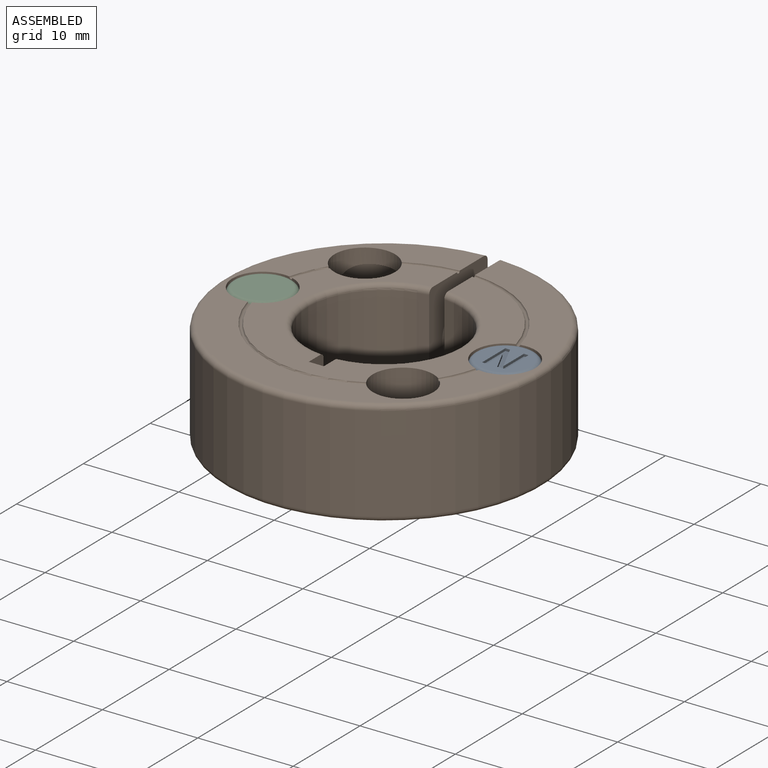
[diagram: assembled view]
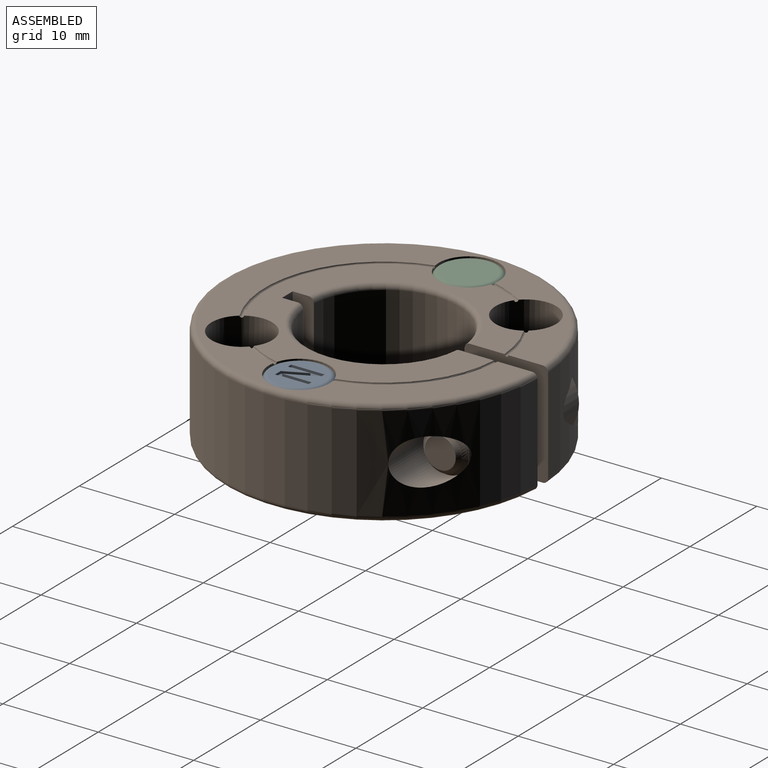
[diagram: assembled view, second angle]
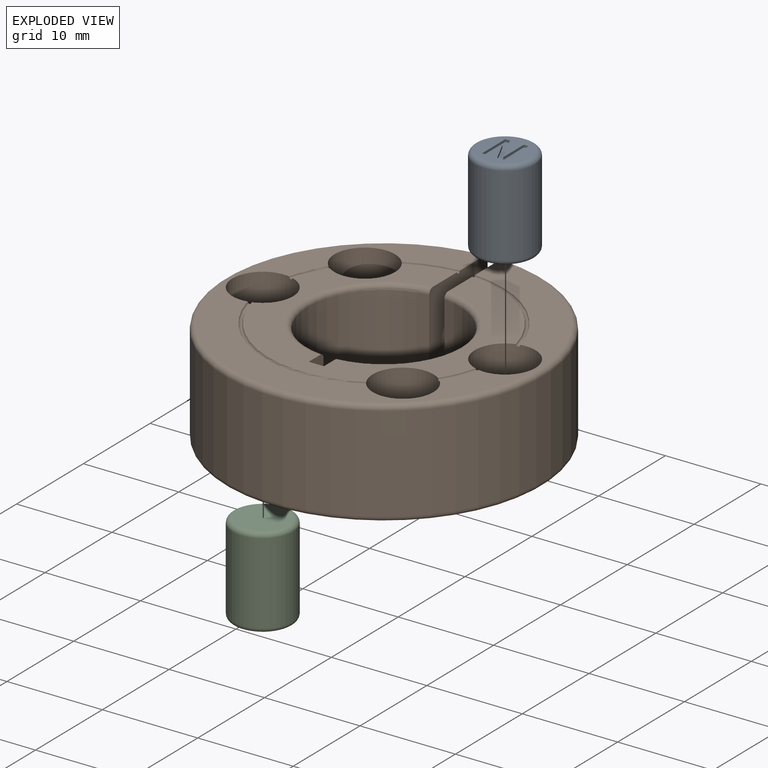
[diagram: exploded view]
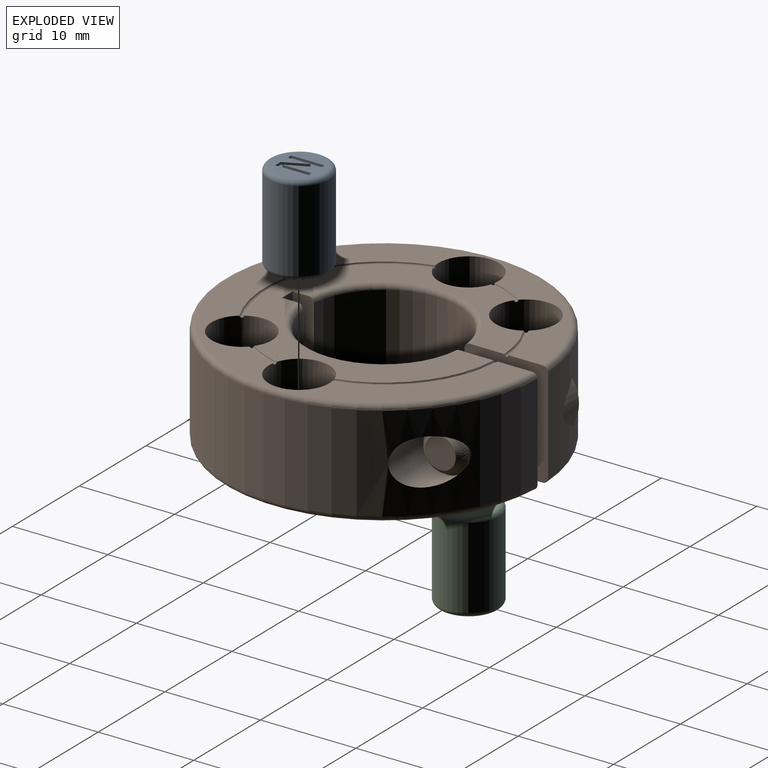
[diagram: exploded view, second angle]
ASSEMBLY  parts=3 mates=2
PART A: 16 faces, bbox 6.9x6.9x9.5 mm
  f0: plane 5.33x5.33mm, normal (0,0,1), area 17.4mm2, adj f3,f4,f5,f6,f7,f8,f9,f10
  f1: cylinder r=3.17mm len=8.51mm, axis (0,0,-1), area 169.7mm2, adj f14,f15
  f2: plane 5.33x5.33mm, normal (0,0,-1), area 22.3mm2, adj f14
  f3: plane 3.48x0.25mm, normal (1,0,0), area 0.9mm2, adj f0,f4,f12,f13
  f4: plane 0.49x0.25mm, normal (0,1,0), area 0.1mm2, adj f0,f3,f5,f13
  f5: plane 2.33x0.25mm, normal (-1,0,0), area 0.6mm2, adj f0,f4,f6,f13
  f6: plane 2.33x1.1mm, normal (0.9,0.43,0), area 0.7mm2, adj f0,f5,f7,f13
  f7: plane 0.85x0.25mm, normal (0,1,0), area 0.2mm2, adj f0,f6,f8,f13
  f8: plane 3.48x0.25mm, normal (-1,0,0), area 0.9mm2, adj f0,f7,f9,f13
  f9: plane 0.49x0.25mm, normal (0,-1,0), area 0.1mm2, adj f0,f8,f10,f13
  f10: plane 3.08x0.25mm, normal (1,0,0), area 0.8mm2, adj f0,f9,f11,f13
  f11: plane 3.08x1.45mm, normal (-0.9,-0.43,0), area 0.9mm2, adj f0,f10,f12,f13
  f12: plane 0.49x0.25mm, normal (0,-1,0), area 0.1mm2, adj f0,f3,f11,f13
  f13: plane 3.48x2.44mm, normal (0,0,1), area 5mm2, adj f3,f4,f5,f6,f7,f8,f9,f10
  f14: torus R=2.67mm, axis (0,0,1), area 15mm2, adj f1,f2
  f15: torus R=2.67mm, axis (0,0,1), area 15mm2, adj f0,f1
PART B: 55 faces, bbox 36.1x36.1x11.3 mm
  f0: torus R=12.3mm, axis (0,0,-1), area 3.1mm2, adj f1,f2,f3,f4
  f1: plane 32.23x32.21mm, normal (0,0,1), area 252.6mm2, adj f0,f2,f4,f5,f6,f7,f8,f9
  f2: cylinder r=3.17mm len=6.35mm, axis (0,0,1), area 78mm2, adj f0,f1,f3,f13,f14,f15
  f3: plane 24.2x23.46mm, normal (0,0,1), area 175.8mm2, adj f0,f2,f4,f6,f7,f8,f9,f10
  f4: plane 11.13x8.77mm, normal (1,0,0), area 78.6mm2, adj f0,f1,f3,f5,f20,f21,f22,f23
  f5: torus R=16.11mm, axis (0,0,1), area 88.9mm2, adj f1,f4,f6,f25
  f6: plane 11.13x8.77mm, normal (-1,0,0), area 78.6mm2, adj f1,f3,f5,f7,f16,f23,f24,f25
  f7: torus R=12.3mm, axis (0,0,-1), area 9.2mm2, adj f1,f3,f6,f8
  f8: cylinder r=3.17mm len=9.53mm, axis (0,0,1), area 190mm2, adj f1,f3,f7,f9,f31
  f9: torus R=12.3mm, axis (0,0,-1), area 2.3mm2, adj f1,f3,f8,f10
  f10: cylinder r=3.17mm len=6.35mm, axis (0,0,1), area 126.7mm2, adj f1,f3,f9,f11,f32
  f11: torus R=12.3mm, axis (0,0,-1), area 13.3mm2, adj f1,f3,f10,f12
  f12: cylinder r=3.17mm len=9.53mm, axis (0,0,1), area 190mm2, adj f1,f3,f11,f13,f33
  f13: torus R=12.3mm, axis (0,0,-1), area 2.3mm2, adj f1,f2,f3,f12
  f14: plane 6.18x2.45mm, normal (0,0,1), area 11.3mm2, adj f2,f15
  f15: cylinder r=4.03mm len=10.87mm, axis (1,0,0), area 128.2mm2, adj f2,f14,f34,f35
  f16: torus R=8.49mm, axis (0,0,1), area 20.9mm2, adj f3,f6,f17,f29
  f17: plane 11.13x2.24mm, normal (-1,0,0), area 24.6mm2, adj f3,f16,f18,f23,f28,f29
  f18: plane 11.11x1.59mm, normal (0,1,0), area 17.6mm2, adj f3,f17,f19,f23
  f19: plane 11.13x2.24mm, normal (1,0,0), area 24.6mm2, adj f3,f18,f20,f21,f22,f23
  f20: torus R=8.49mm, axis (0,0,1), area 20.9mm2, adj f3,f4,f19,f21
  f21: cylinder r=7.94mm len=15.8mm, axis (0,0,-1), area 233.5mm2, adj f4,f19,f20,f22
  f22: torus R=8.49mm, axis (0,0,1), area 20.9mm2, adj f4,f19,f21,f23
  f23: plane 32.23x32.21mm, normal (0,0,-1), area 574.3mm2, adj f4,f6,f17,f18,f19,f22,f24,f28
  f24: torus R=16.11mm, axis (0,0,1), area 88.9mm2, adj f4,f6,f23,f25
  f25: cylinder r=16.67mm len=33.34mm, axis (0,0,-1), area 1003.8mm2, adj f4,f5,f6,f24,f30,f36
  f26: cylinder r=2.41mm len=4.83mm, axis (1,0,0), area 3mm2, adj f4,f6,f37,f38
  f27: cylinder r=2.41mm len=4.83mm, axis (1,0,0), area 30.3mm2, adj f4,f37,f38,f39
  f28: torus R=8.49mm, axis (0,0,1), area 20.9mm2, adj f6,f17,f23,f29
  f29: cylinder r=7.94mm len=15.8mm, axis (0,0,-1), area 233.5mm2, adj f6,f16,f17,f28
  f30: cylinder r=2.41mm len=12.65mm, axis (1,0,0), area 139.4mm2, adj f6,f25,f37,f38,f40
  f31: plane 6.35x6.35mm, normal (0,0,1), area 31.7mm2, adj f8
  f32: plane 6.35x6.35mm, normal (0,0,1), area 31.7mm2, adj f10
  f33: plane 6.35x6.35mm, normal (0,0,1), area 31.7mm2, adj f12
  f34: cylinder r=16.67mm len=10.87mm, axis (0,0,-1), area 84.3mm2, adj f15,f35
  f35: plane 8.06x8.03mm, normal (-1,0,0), area 1.6mm2, adj f15,f34,f41
  f36: cylinder r=2.41mm len=1.96mm, axis (1,0,0), area 0.2mm2, adj f25,f37,f38,f40
  f37: bspline ~12.23x4.91mm, area 115.9mm2, adj f26,f27,f30,f36,f39,f40,f42,f43
  f38: bspline ~12.33x4.91mm, area 119.8mm2, adj f26,f27,f30,f36,f39,f40,f42
  f39: plane 0.69x0.52mm, normal (0,-1,0), area 0.2mm2, adj f27,f37,f38,f42
  f40: cone r=1.62mm half-angle=45deg, axis (-1,0,0), area 1.3mm2, adj f30,f36,f37,f38,f43
  f41: cylinder r=3.97mm len=7.94mm, axis (1,0,0), area 55.2mm2, adj f35,f44,f45,f46
  f42: cylinder r=1.9mm len=11.93mm, axis (-1,0,0), area 37.7mm2, adj f37,f38,f39,f43
  f43: cone r=1.62mm half-angle=45deg, axis (-1,0,0), area 7.8mm2, adj f37,f40,f42,f47
  f44: cylinder r=3.17mm len=4.61mm, axis (0,0,1), area 8.9mm2, adj f41,f45,f46,f48,f49,f50
  f45: plane 2.06x0.84mm, normal (0,0,1), area 1.6mm2, adj f41,f44,f46,f48
  f46: plane 7.94x7.86mm, normal (-1,0,0), area 27.5mm2, adj f41,f44,f45,f48,f50,f51,f52,f53
  f47: plane 3.24x3.24mm, normal (1,0,0), area 8.2mm2, adj f43
  f48: plane 1.99x1.53mm, normal (0,0.87,0.5), area 2.9mm2, adj f44,f45,f46,f49,f51,f54
  f49: plane 1.98x1.46mm, normal (0,0.87,-0.5), area 2.5mm2, adj f44,f48,f50,f54
  f50: plane 2.29x1.52mm, normal (0,0,-1), area 3.5mm2, adj f44,f46,f49,f53,f54
  f51: plane 2.29x1.52mm, normal (0,0,1), area 3.5mm2, adj f46,f48,f52,f54
  f52: plane 1.98x1.52mm, normal (0,-0.87,0.5), area 3.5mm2, adj f46,f51,f53,f54
  f53: plane 1.98x1.52mm, normal (0,-0.87,-0.5), area 3.5mm2, adj f46,f50,f52,f54
  f54: plane 4.58x3.96mm, normal (-1,0,0), area 13.6mm2, adj f48,f49,f50,f51,f52,f53
PART C: same geometry as A
PLACE A t=(138.13,1.87,-4.78)mm
PLACE B t=(4.2,1.88,-0.81)mm fixed
PLACE C rot(axis=(1,0,0),180deg) t=(112.73,1.88,4.74)mm
MATE fastened A.f1 <-> B.f8  axis (0,0,1) through (16.9,1.88,4.74)mm
MATE fastened B.f12 <-> C.f1  axis (0,0,1) through (-8.5,1.88,4.74)mm
